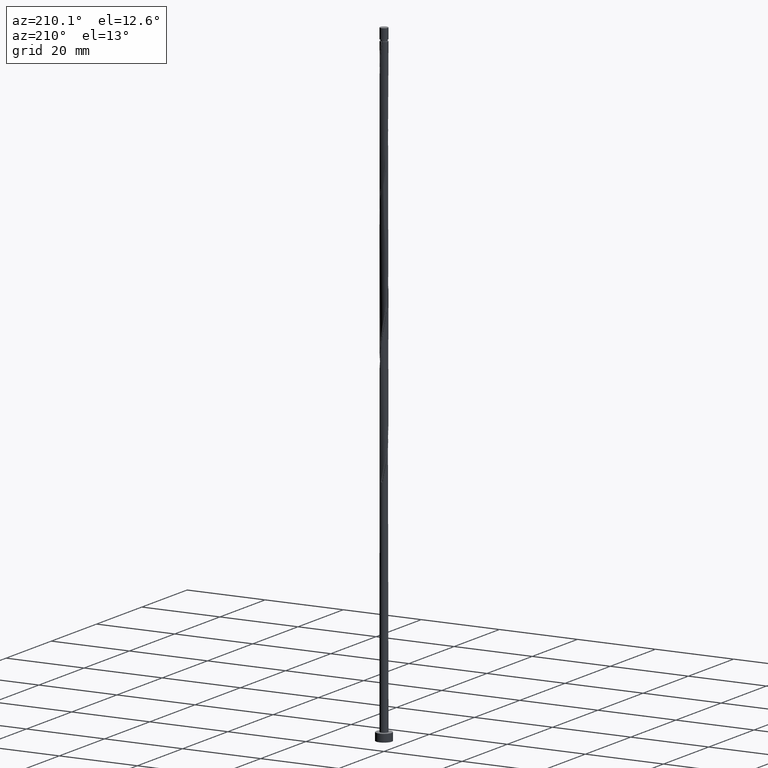
[diagram: clean part render]
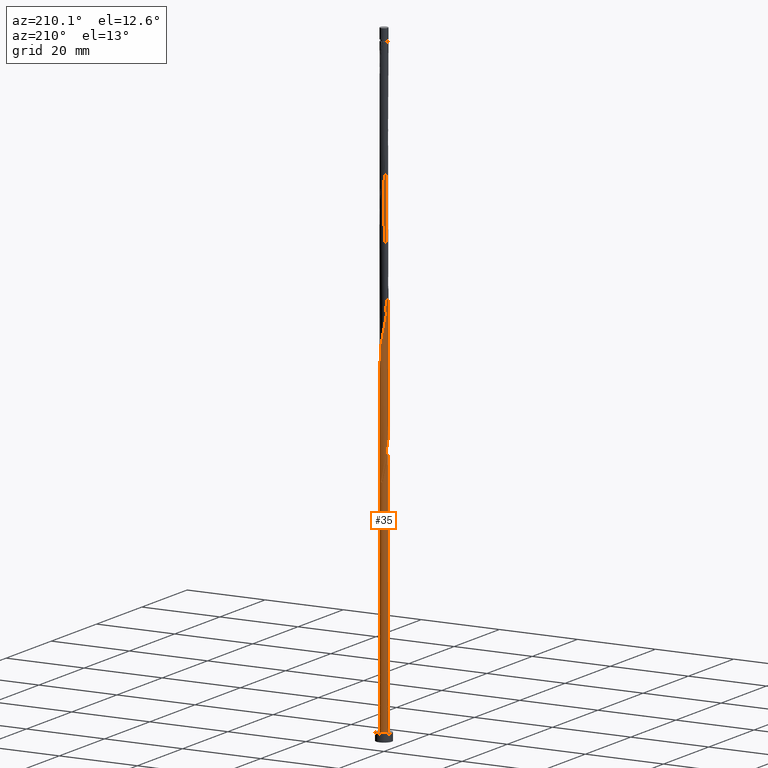
[diagram: same view with one face highlighted and labeled with its STEP entity id]
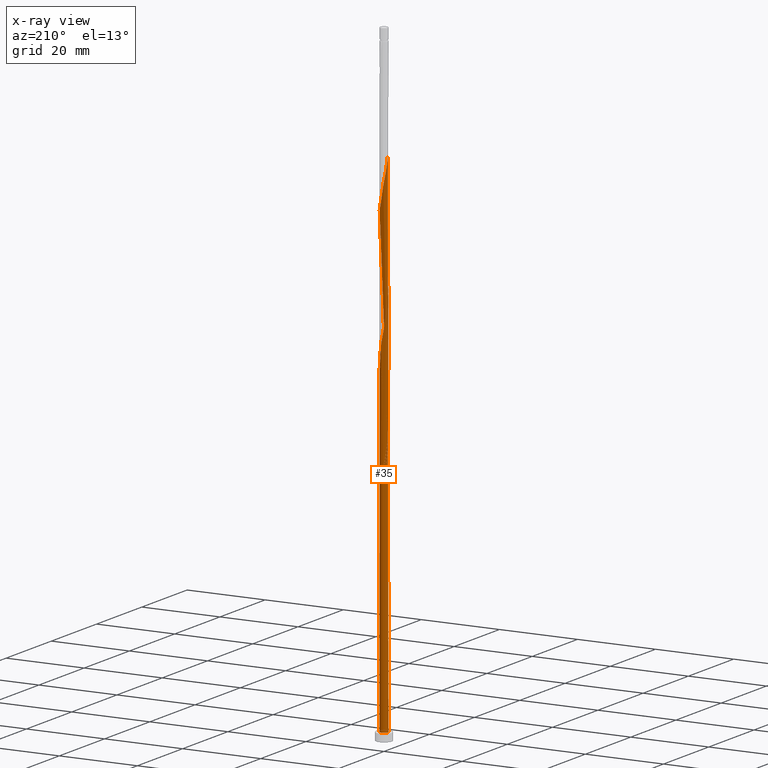
[diagram: x-ray of the same camera — body ghosted, the highlighted face saturated]
A machine part, auxiliary view. The second image highlights one B-rep face of the part: STEP entity #35.
The next image is the same camera in x-ray: the body ghosted, the highlighted face saturated — about 0% of this face is hidden behind the body in this view.
In plain terms, the highlighted cylindrical surface (bore or boss wall) has radius 1 mm, axis along (-0, -0, -1).
Its self-contained STEP definition (entity closure, byte-faithful):
#2 = CARTESIAN_POINT ( 'NONE',  ( 0.1928297432528308653, 0.9900247826383183902, 90.16126911163856050 ) ) ;
#13 = CARTESIAN_POINT ( 'NONE',  ( -0.4458594766673664722, 0.8951029700910981823, 93.63349133386081746 ) ) ;
#22 = CARTESIAN_POINT ( 'NONE',  ( 0.9800000000000006484, 0.1989974874213291944, 117.2446024449719033 ) ) ;
#29 = CARTESIAN_POINT ( 'NONE',  ( -0.8336771183575235611, 0.5522521727681104498, 129.7446024449719175 ) ) ;
#34 = DIRECTION ( 'NONE',  ( -0.000000000000000000, -0.000000000000000000, -1.000000000000000000 ) ) ;
#35 = ADVANCED_FACE ( 'NONE', ( #517 ), #1525, .T. ) ;
#37 = CARTESIAN_POINT ( 'NONE',  ( -0.7609717405145356439, 0.6620078475813413466, 129.0501580005274320 ) ) ;
#45 = CARTESIAN_POINT ( 'NONE',  ( 0.9482036394194149898, -0.3176631206038552646, 114.4668246671941318 ) ) ;
#48 = DIRECTION ( 'NONE',  ( 1.000000000000000000, 0.000000000000000000, 0.000000000000000000 ) ) ;
#71 = DIRECTION ( 'NONE',  ( -0.000000000000000000, -0.000000000000000000, -1.000000000000000000 ) ) ;
#77 = VERTEX_POINT ( 'NONE', #202 ) ;
#95 = ORIENTED_EDGE ( 'NONE', *, *, #1466, .F. ) ;
#106 = CARTESIAN_POINT ( 'NONE',  ( -0.5522521727681102277, 0.8336771183575236721, 63.07793577830522480 ) ) ;
#107 = CARTESIAN_POINT ( 'NONE',  ( 0.9063824962005111452, -0.4424964979548794419, 80.43904688941637460 ) ) ;
#117 = CARTESIAN_POINT ( 'NONE',  ( -0.7492061519980853790, -0.6623368793961456058, 103.3557135560830318 ) ) ;
#130 = CARTESIAN_POINT ( 'NONE',  ( 0.1989974874213292777, -0.9800000000000006484, 75.57793577830524612 ) ) ;
#137 = CARTESIAN_POINT ( 'NONE',  ( -0.3280169350569774323, 0.9538014837673659541, 92.93904688941633196 ) ) ;
#143 = ORIENTED_EDGE ( 'NONE', *, *, #256, .F. ) ;
#145 = CARTESIAN_POINT ( 'NONE',  ( 0.9900247826383183902, -0.1928297432528308097, 81.82793577830524612 ) ) ;
#149 = AXIS2_PLACEMENT_3D ( 'NONE', #1040, #1161, #48 ) ;
#156 = CARTESIAN_POINT ( 'NONE',  ( 0.3176631206038553201, 0.9482036394194147677, 122.8001580005274747 ) ) ;
#164 = CARTESIAN_POINT ( 'NONE',  ( -0.6623368793961456058, 0.7492061519980853790, 128.3557135560830318 ) ) ;
#168 = EDGE_CURVE ( 'NONE', #975, #1564, #942, .T. ) ;
#172 = CARTESIAN_POINT ( 'NONE',  ( 0.9981116494354764779, -0.06142585173357523187, 115.8557135560830460 ) ) ;
#181 = CARTESIAN_POINT ( 'NONE',  ( -0.06997803978568031824, 1.006198516232634788, 124.8834913338607890 ) ) ;
#185 = CARTESIAN_POINT ( 'NONE',  ( 0.000000000000000000, 0.000000000000000000, 58.91126911163856050 ) ) ;
#187 = LINE ( 'NONE', #1398, #869 ) ;
#197 = CARTESIAN_POINT ( 'NONE',  ( -1.000000000000001554, -1.495378444362007942E-16, 66.18103578976182177 ) ) ;
#198 = CARTESIAN_POINT ( 'NONE',  ( -1.000000000000001332, 0.03074195165767100446, 66.01787210173368692 ) ) ;
#202 = CARTESIAN_POINT ( 'NONE',  ( -1.000000000000000000, 0.000000000000000000, 2.000000000000000000 ) ) ;
#212 = CARTESIAN_POINT ( 'NONE',  ( -0.5637020182777556787, 0.8364044564148300775, 60.99460244497191042 ) ) ;
#226 = CARTESIAN_POINT ( 'NONE',  ( 0.1989974874213297495, 0.9800000000000006484, 58.91126911163857471 ) ) ;
#233 = VERTEX_POINT ( 'NONE', #197 ) ;
#235 = CARTESIAN_POINT ( 'NONE',  ( -0.9800000000000006484, -0.1989974874213293055, 100.5779357783052319 ) ) ;
#243 = CARTESIAN_POINT ( 'NONE',  ( -0.9538014837673660651, -0.3280169350569771547, 101.2723802227496890 ) ) ;
#250 = CARTESIAN_POINT ( 'NONE',  ( -0.9800000000000006484, -0.1989974874213293055, 67.24460244497190331 ) ) ;
#256 = EDGE_CURVE ( 'NONE', #1419, #1564, #738, .T. ) ;
#259 = CARTESIAN_POINT ( 'NONE',  ( 0.9538014837673662871, 0.3280169350569770437, 84.60571355608301758 ) ) ;
#267 = CARTESIAN_POINT ( 'NONE',  ( -0.6620078475813415686, -0.7609717405145355329, 70.71682466719414606 ) ) ;
#275 = CARTESIAN_POINT ( 'NONE',  ( 0.9063824962005111452, -0.4424964979548794419, 113.7723802227496890 ) ) ;
#282 = CARTESIAN_POINT ( 'NONE',  ( -0.06142585173357467676, -0.9981116494354764779, 107.5223802227496606 ) ) ;
#289 = CARTESIAN_POINT ( 'NONE',  ( -0.5637020182777556787, 0.8364044564148300775, 127.6612691116385747 ) ) ;
#307 = CARTESIAN_POINT ( 'NONE',  ( 0.8364044564148302996, 0.5637020182777551236, 119.3279357783052035 ) ) ;
#324 = CARTESIAN_POINT ( 'NONE',  ( -0.7492061519980856010, 0.6623368793961457168, 64.46682466719414606 ) ) ;
#356 = CARTESIAN_POINT ( 'NONE',  ( -0.3176631206038546540, 0.9482036394194148787, 61.68904688941635328 ) ) ;
#357 = CARTESIAN_POINT ( 'NONE',  ( -0.9981116494354764779, 0.06142585173357463513, 65.85571355608301758 ) ) ;
#364 = CARTESIAN_POINT ( 'NONE',  ( 0.8951029700910982934, 0.4458594766673660281, 85.30015800052747466 ) ) ;
#372 = CARTESIAN_POINT ( 'NONE',  ( -0.4424964979548793864, -0.9063824962005112562, 105.4390468894163604 ) ) ;
#378 = CARTESIAN_POINT ( 'NONE',  ( -0.06142585173357467676, -0.9981116494354764779, 74.18904688941634618 ) ) ;
#392 = ORIENTED_EDGE ( 'NONE', *, *, #852, .T. ) ;
#394 = CARTESIAN_POINT ( 'NONE',  ( -0.9981116494354764779, 0.06142585173357463513, 99.18904688941634618 ) ) ;
#398 = CARTESIAN_POINT ( 'NONE',  ( 0.000000000000000000, 0.000000000000000000, 162.0000000000000000 ) ) ;
#409 = CARTESIAN_POINT ( 'NONE',  ( -0.9482036394194149898, 0.3176631206038548205, 131.1334913338608317 ) ) ;
#417 = CARTESIAN_POINT ( 'NONE',  ( 0.5637020182777551236, -0.8364044564148302996, 110.9946024449718891 ) ) ;
#424 = CARTESIAN_POINT ( 'NONE',  ( 0.4458594766673661391, -0.8951029700910982934, 110.3001580005274889 ) ) ;
#442 = CARTESIAN_POINT ( 'NONE',  ( -0.8951029700910978493, 0.4458594766673665832, 65.85571355608300337 ) ) ;
#479 = CARTESIAN_POINT ( 'NONE',  ( 0.8336771183575232280, -0.5522521727681107828, 79.74460244497191752 ) ) ;
#487 = CARTESIAN_POINT ( 'NONE',  ( -0.6620078475813413466, 0.7609717405145359770, 63.77238022274966767 ) ) ;
#488 = CARTESIAN_POINT ( 'NONE',  ( 0.4424964979548794974, 0.9063824962005111452, 88.77238022274964635 ) ) ;
#496 = CARTESIAN_POINT ( 'NONE',  ( -0.8364044564148300775, -0.5637020182777553456, 69.32793577830524612 ) ) ;
#505 = CARTESIAN_POINT ( 'NONE',  ( 0.4458594766673661391, -0.8951029700910982934, 76.96682466719413185 ) ) ;
#517 = FACE_OUTER_BOUND ( 'NONE', #1255, .T. ) ;
#525 = CARTESIAN_POINT ( 'NONE',  ( 0.1928297432528308653, 0.9900247826383183902, 123.4946024449719033 ) ) ;
#534 = CARTESIAN_POINT ( 'NONE',  ( -1.000000000000001554, 1.831838594343459279E-16, 132.8477024564284932 ) ) ;
#540 = CARTESIAN_POINT ( 'NONE',  ( -0.3280169350569774323, 0.9538014837673659541, 126.2723802227496748 ) ) ;
#547 = CARTESIAN_POINT ( 'NONE',  ( -1.000000000000001776, 0.1005037815259243600, 67.77474273099271329 ) ) ;
#565 = CARTESIAN_POINT ( 'NONE',  ( -0.6623368793961456058, 0.7492061519980853790, 61.68904688941636749 ) ) ;
#569 = DIRECTION ( 'NONE',  ( -1.136298667188453683E-28, 1.734723475976783744E-14, -1.000000000000000000 ) ) ;
#599 = CARTESIAN_POINT ( 'NONE',  ( 0.06997803978568135908, 1.006198516232634788, 59.60571355608303179 ) ) ;
#600 = CARTESIAN_POINT ( 'NONE',  ( -0.9482036394194149898, 0.3176631206038548205, 97.80015800052744623 ) ) ;
#606 = ORIENTED_EDGE ( 'NONE', *, *, #951, .T. ) ;
#608 = CARTESIAN_POINT ( 'NONE',  ( -0.6620078475813415686, -0.7609717405145355329, 104.0501580005274604 ) ) ;
#618 = CARTESIAN_POINT ( 'NONE',  ( 0.6623368793961454948, -0.7492061519980859341, 78.35571355608301758 ) ) ;
#627 = CARTESIAN_POINT ( 'NONE',  ( -0.7492061519980853790, -0.6623368793961456058, 70.02238022274967477 ) ) ;
#634 = CARTESIAN_POINT ( 'NONE',  ( 0.9800000000000006484, 0.1989974874213291944, 83.91126911163856050 ) ) ;
#637 = AXIS2_PLACEMENT_3D ( 'NONE', #398, #34, #891 ) ;
#643 = CARTESIAN_POINT ( 'NONE',  ( -0.9900247826383183902, 0.1928297432528302546, 131.8279357783052319 ) ) ;
#660 = CARTESIAN_POINT ( 'NONE',  ( 0.5522521727681106718, 0.8336771183575233390, 121.4112691116385747 ) ) ;
#671 =( BOUNDED_CURVE ( )  B_SPLINE_CURVE ( 2, ( #1093, #959, #1200, #212, #565, #1471, #1480, #1569, #1209, #1450, #357, #198, #686 ),
 .UNSPECIFIED., .F., .T. ) 
 B_SPLINE_CURVE_WITH_KNOTS ( ( 3, 2, 2, 2, 2, 2, 3 ),
 ( 0.000000000000000000, 0.01041666666666662966, 0.02083333333333337034, 0.03125000000000000000, 0.04166666666666662966, 0.05208333333333337034, 0.05453176698144612117 ),
 .UNSPECIFIED. ) 
 CURVE ( )  GEOMETRIC_REPRESENTATION_ITEM ( )  RATIONAL_B_SPLINE_CURVE ( ( 0.9090909090909243817, 0.9013135103398429715, 0.9090909090909243817, 0.9013135103398429715, 0.9090909090909243817, 0.9013135103398429715, 0.9090909090909243817, 0.9013135103398429715, 0.9090909090909243817, 0.9013135103398429715, 0.9090909090909243817, 0.9072628343904183268, 0.9062941362546448332 ) ) 
 REPRESENTATION_ITEM ( '' )  );
#686 = CARTESIAN_POINT ( 'NONE',  ( -1.000000000000001554, -1.495378444362007942E-16, 66.18103578976182177 ) ) ;
#726 = CARTESIAN_POINT ( 'NONE',  ( 0.3280169350569771547, -0.9538014837673662871, 76.27238022274966056 ) ) ;
#732 = CARTESIAN_POINT ( 'NONE',  ( -0.8364044564148300775, -0.5637020182777553456, 102.6612691116385605 ) ) ;
#738 =( BOUNDED_CURVE ( )  B_SPLINE_CURVE ( 2, ( #1183, #547, #1062, #1568, #442, #933, #324, #487, #106, #1368, #356, #1359, #1249, #599, #226 ),
 .UNSPECIFIED., .F., .T. ) 
 B_SPLINE_CURVE_WITH_KNOTS ( ( 3, 2, 2, 2, 2, 2, 2, 3 ),
 ( 0.9295317669814461281, 0.9375000000000000000, 0.9479166666666666297, 0.9583333333333333703, 0.9687500000000000000, 0.9791666666666666297, 0.9895833333333333703, 1.000000000000000000 ),
 .UNSPECIFIED. ) 
 CURVE ( )  GEOMETRIC_REPRESENTATION_ITEM ( )  RATIONAL_B_SPLINE_CURVE ( ( 0.9062941362546346191, 0.9031415850403385903, 0.9090909090909141677, 0.9013135103398325354, 0.9090909090909141677, 0.9013135103398325354, 0.9090909090909141677, 0.9013135103398325354, 0.9090909090909141677, 0.9013135103398325354, 0.9090909090909141677, 0.9013135103398325354, 0.9090909090909141677, 0.9013135103398325354, 0.9090909090909141677 ) ) 
 REPRESENTATION_ITEM ( '' )  );
#742 = CARTESIAN_POINT ( 'NONE',  ( 0.7492061519980861561, 0.6623368793961452727, 86.68904688941637460 ) ) ;
#745 = VECTOR ( 'NONE', #71, 1000.000000000000000 ) ;
#750 = CARTESIAN_POINT ( 'NONE',  ( -0.06997803978568031824, 1.006198516232634788, 91.55015800052746044 ) ) ;
#759 = CARTESIAN_POINT ( 'NONE',  ( 0.7609717405145355329, -0.6620078475813415686, 79.05015800052747466 ) ) ;
#766 = CARTESIAN_POINT ( 'NONE',  ( 0.8951029700910982934, 0.4458594766673660281, 118.6334913338607748 ) ) ;
#772 = CARTESIAN_POINT ( 'NONE',  ( 0.4424964979548794974, 0.9063824962005111452, 122.1057135560829892 ) ) ;
#778 = CARTESIAN_POINT ( 'NONE',  ( 0.1989974874213292777, -0.9800000000000006484, 108.9112691116385889 ) ) ;
#793 = CARTESIAN_POINT ( 'NONE',  ( -0.1989974874213291389, 0.9800000000000006484, 125.5779357783052603 ) ) ;
#826 =( BOUNDED_CURVE ( )  B_SPLINE_CURVE ( 2, ( #1490, #1250, #250, #1391, #1007, #496, #627, #267, #978, #1236, #877, #868, #378, #1369, #130, #726, #505, #1376, #618, #759, #479, #107, #1266, #145, #1384, #1123, #634, #259, #364, #1627, #742, #1139, #1505, #488, #1498, #2, #996, #750, #1242, #137, #13, #1014, #1620, #1258, #1520, #1130, #600, #1511, #394, #1360, #235, #243, #1103, #732, #117, #608, #1113, #372, #900, #1165, #282, #1159, #778, #1405, #424, #417, #1542, #893, #1289, #275, #45, #1413, #172, #915, #22, #1044, #766, #307, #1549, #909, #660, #772, #156, #525, #1428, #181, #793, #540, #1281, #289, #164, #37, #29, #1030, #409, #643, #1305, #1536, #534 ),
 .UNSPECIFIED., .F., .T. ) 
 B_SPLINE_CURVE_WITH_KNOTS ( ( 3, 2, 2, 2, 2, 2, 2, 2, 2, 2, 2, 2, 2, 2, 2, 2, 2, 2, 2, 2, 2, 2, 2, 2, 2, 2, 2, 2, 2, 2, 2, 2, 2, 2, 2, 2, 2, 2, 2, 2, 2, 2, 2, 2, 2, 2, 2, 2, 2, 3 ),
 ( 0.05453176698144612117, 0.06250000000000000000, 0.07291666666666662966, 0.08333333333333337034, 0.09375000000000000000, 0.1041666666666666297, 0.1145833333333333703, 0.1250000000000000000, 0.1354166666666666297, 0.1458333333333333703, 0.1562500000000000000, 0.1666666666666666297, 0.1770833333333333703, 0.1875000000000000000, 0.1979166666666666297, 0.2083333333333333703, 0.2187500000000000000, 0.2291666666666666297, 0.2395833333333333703, 0.2500000000000000000, 0.2604166666666666297, 0.2708333333333333703, 0.2812500000000000000, 0.2916666666666666297, 0.3020833333333333703, 0.3125000000000000000, 0.3229166666666666297, 0.3333333333333333703, 0.3437500000000000000, 0.3541666666666666297, 0.3645833333333333703, 0.3750000000000000000, 0.3854166666666666297, 0.3958333333333333703, 0.4062500000000000000, 0.4166666666666666297, 0.4270833333333333703, 0.4375000000000000000, 0.4479166666666666297, 0.4583333333333333703, 0.4687500000000000000, 0.4791666666666666297, 0.4895833333333333703, 0.5000000000000000000, 0.5104166666666667407, 0.5208333333333332593, 0.5312500000000000000, 0.5416666666666667407, 0.5520833333333332593, 0.5545317669814463502 ),
 .UNSPECIFIED. ) 
 CURVE ( )  GEOMETRIC_REPRESENTATION_ITEM ( )  RATIONAL_B_SPLINE_CURVE ( ( 0.9062941362546448332, 0.9031415850403489154, 0.9090909090909243817, 0.9013135103398429715, 0.9090909090909243817, 0.9013135103398429715, 0.9090909090909243817, 0.9013135103398429715, 0.9090909090909243817, 0.9013135103398429715, 0.9090909090909243817, 0.9013135103398429715, 0.9090909090909243817, 0.9013135103398429715, 0.9090909090909243817, 0.9013135103398429715, 0.9090909090909243817, 0.9013135103398429715, 0.9090909090909243817, 0.9013135103398429715, 0.9090909090909243817, 0.9013135103398429715, 0.9090909090909243817, 0.9013135103398429715, 0.9090909090909243817, 0.9013135103398429715, 0.9090909090909243817, 0.9013135103398429715, 0.9090909090909243817, 0.9013135103398429715, 0.9090909090909243817, 0.9013135103398429715, 0.9090909090909243817, 0.9013135103398429715, 0.9090909090909243817, 0.9013135103398429715, 0.9090909090909243817, 0.9013135103398429715, 0.9090909090909243817, 0.9013135103398429715, 0.9090909090909243817, 0.9013135103398429715, 0.9090909090909243817, 0.9013135103398429715, 0.9090909090909243817, 0.9013135103398429715, 0.9090909090909243817, 0.9013135103398429715, 0.9090909090909243817, 0.9013135103398429715, 0.9090909090909243817, 0.9013135103398429715, 0.9090909090909243817, 0.9013135103398429715, 0.9090909090909243817, 0.9013135103398429715, 0.9090909090909243817, 0.9013135103398429715, 0.9090909090909243817, 0.9013135103398429715, 0.9090909090909243817, 0.9013135103398429715, 0.9090909090909243817, 0.9013135103398429715, 0.9090909090909243817, 0.9013135103398429715, 0.9090909090909243817, 0.9013135103398429715, 0.9090909090909243817, 0.9013135103398429715, 0.9090909090909243817, 0.9013135103398429715, 0.9090909090909243817, 0.9013135103398429715, 0.9090909090909243817, 0.9013135103398429715, 0.9090909090909243817, 0.9013135103398429715, 0.9090909090909243817, 0.9013135103398429715, 0.9090909090909243817, 0.9013135103398429715, 0.9090909090909243817, 0.9013135103398429715, 0.9090909090909243817, 0.9013135103398429715, 0.9090909090909243817, 0.9013135103398429715, 0.9090909090909243817, 0.9013135103398429715, 0.9090909090909243817, 0.9013135103398429715, 0.9090909090909243817, 0.9013135103398429715, 0.9090909090909243817, 0.9013135103398429715, 0.9090909090909243817, 0.9072628343904181047, 0.9062941362546447222 ) ) 
 REPRESENTATION_ITEM ( '' )  );
#827 = CARTESIAN_POINT ( 'NONE',  ( -1.000000000000001554, 1.831838594343459526E-16, 132.8477024564284932 ) ) ;
#841 = ORIENTED_EDGE ( 'NONE', *, *, #168, .T. ) ;
#852 = EDGE_CURVE ( 'NONE', #77, #857, #1381, .T. ) ;
#857 = VERTEX_POINT ( 'NONE', #952 ) ;
#868 = CARTESIAN_POINT ( 'NONE',  ( -0.1928297432528303101, -0.9900247826383183902, 73.49460244497190331 ) ) ;
#869 = VECTOR ( 'NONE', #1037, 1000.000000000000000 ) ;
#877 = CARTESIAN_POINT ( 'NONE',  ( -0.3176631206038551536, -0.9482036394194149898, 72.80015800052746044 ) ) ;
#882 = VERTEX_POINT ( 'NONE', #827 ) ;
#891 = DIRECTION ( 'NONE',  ( -1.000000000000000000, 0.000000000000000000, 0.000000000000000000 ) ) ;
#893 = CARTESIAN_POINT ( 'NONE',  ( 0.7609717405145355329, -0.6620078475813415686, 112.3834913338607890 ) ) ;
#900 = CARTESIAN_POINT ( 'NONE',  ( -0.3176631206038551536, -0.9482036394194149898, 106.1334913338608033 ) ) ;
#909 = CARTESIAN_POINT ( 'NONE',  ( 0.6620078475813419017, 0.7609717405145354219, 120.7168246671941034 ) ) ;
#915 = CARTESIAN_POINT ( 'NONE',  ( 1.006198516232634788, 0.06997803978568042926, 116.5501580005274747 ) ) ;
#919 = AXIS2_PLACEMENT_3D ( 'NONE', #185, #569, #1553 ) ;
#933 = CARTESIAN_POINT ( 'NONE',  ( -0.8364044564148300775, 0.5637020182777559008, 65.16126911163857471 ) ) ;
#942 = CIRCLE ( 'NONE', #919, 1.000000000000000000 ) ;
#951 = EDGE_CURVE ( 'NONE', #857, #77, #1192, .T. ) ;
#952 = CARTESIAN_POINT ( 'NONE',  ( 1.000000000000000000, 0.000000000000000000, 2.000000000000000000 ) ) ;
#959 = CARTESIAN_POINT ( 'NONE',  ( -0.3280169350569774323, 0.9538014837673659541, 59.60571355608302468 ) ) ;
#974 = AXIS2_PLACEMENT_3D ( 'NONE', #1239, #1088, #1335 ) ;
#975 = VERTEX_POINT ( 'NONE', #1529 ) ;
#978 = CARTESIAN_POINT ( 'NONE',  ( -0.5522521727681104498, -0.8336771183575233390, 71.41126911163857471 ) ) ;
#985 = ORIENTED_EDGE ( 'NONE', *, *, #1396, .T. ) ;
#996 = CARTESIAN_POINT ( 'NONE',  ( 0.06142585173357528738, 0.9981116494354764779, 90.85571355608300337 ) ) ;
#1007 = CARTESIAN_POINT ( 'NONE',  ( -0.8951029700910981823, -0.4458594766673663057, 68.63349133386080325 ) ) ;
#1014 = CARTESIAN_POINT ( 'NONE',  ( -0.5637020182777556787, 0.8364044564148300775, 94.32793577830521770 ) ) ;
#1030 = CARTESIAN_POINT ( 'NONE',  ( -0.9063824962005113672, 0.4424964979548792754, 130.4390468894163462 ) ) ;
#1037 = DIRECTION ( 'NONE',  ( -0.000000000000000000, -0.000000000000000000, -1.000000000000000000 ) ) ;
#1040 = CARTESIAN_POINT ( 'NONE',  ( 0.000000000000000000, 0.000000000000000000, 2.000000000000000000 ) ) ;
#1044 = CARTESIAN_POINT ( 'NONE',  ( 0.9538014837673662871, 0.3280169350569770437, 117.9390468894163746 ) ) ;
#1062 = CARTESIAN_POINT ( 'NONE',  ( -0.9800000000000006484, 0.1989974874213293887, 67.24460244497190331 ) ) ;
#1063 = LINE ( 'NONE', #1322, #745 ) ;
#1072 = CARTESIAN_POINT ( 'NONE',  ( -1.000000000000001554, 4.785211021958479058E-16, 68.30816910018198485 ) ) ;
#1088 = DIRECTION ( 'NONE',  ( 0.000000000000000000, 0.000000000000000000, 1.000000000000000000 ) ) ;
#1093 = CARTESIAN_POINT ( 'NONE',  ( -0.1989974874213292777, 0.9800000000000006484, 58.91126911163857471 ) ) ;
#1103 = CARTESIAN_POINT ( 'NONE',  ( -0.8951029700910981823, -0.4458594766673663057, 101.9668246671941461 ) ) ;
#1113 = CARTESIAN_POINT ( 'NONE',  ( -0.5522521727681104498, -0.8336771183575233390, 104.7446024449719033 ) ) ;
#1123 = CARTESIAN_POINT ( 'NONE',  ( 1.006198516232634788, 0.06997803978568042926, 83.21682466719413185 ) ) ;
#1130 = CARTESIAN_POINT ( 'NONE',  ( -0.9063824962005113672, 0.4424964979548792754, 97.10571355608300337 ) ) ;
#1139 = CARTESIAN_POINT ( 'NONE',  ( 0.6620078475813419017, 0.7609717405145354219, 87.38349133386077483 ) ) ;
#1159 = CARTESIAN_POINT ( 'NONE',  ( 0.06997803978568098437, -1.006198516232634788, 108.2168246671941176 ) ) ;
#1161 = DIRECTION ( 'NONE',  ( 0.000000000000000000, 0.000000000000000000, 1.000000000000000000 ) ) ;
#1165 = CARTESIAN_POINT ( 'NONE',  ( -0.1928297432528303101, -0.9900247826383183902, 106.8279357783052177 ) ) ;
#1173 = CARTESIAN_POINT ( 'NONE',  ( 0.1989974874213297495, 0.9800000000000006484, 58.91126911163857471 ) ) ;
#1183 = CARTESIAN_POINT ( 'NONE',  ( -1.000000000000001554, 4.785211021958479058E-16, 68.30816910018198485 ) ) ;
#1192 = CIRCLE ( 'NONE', #149, 1.000000000000000000 ) ;
#1200 = CARTESIAN_POINT ( 'NONE',  ( -0.4458594766673664722, 0.8951029700910981823, 60.30015800052746755 ) ) ;
#1209 = CARTESIAN_POINT ( 'NONE',  ( -0.9482036394194149898, 0.3176631206038548205, 64.46682466719414606 ) ) ;
#1234 = ORIENTED_EDGE ( 'NONE', *, *, #1396, .F. ) ;
#1236 = CARTESIAN_POINT ( 'NONE',  ( -0.4424964979548793864, -0.9063824962005112562, 72.10571355608300337 ) ) ;
#1239 = CARTESIAN_POINT ( 'NONE',  ( 0.000000000000000000, 0.000000000000000000, 2.000000000000000000 ) ) ;
#1242 = CARTESIAN_POINT ( 'NONE',  ( -0.1989974874213291389, 0.9800000000000006484, 92.24460244497191752 ) ) ;
#1249 = CARTESIAN_POINT ( 'NONE',  ( -0.06142585173357442002, 0.9981116494354765889, 60.30015800052744623 ) ) ;
#1250 = CARTESIAN_POINT ( 'NONE',  ( -1.000000000000001554, -0.1005037815259239575, 66.71446215895112175 ) ) ;
#1255 = EDGE_LOOP ( 'NONE', ( #1395, #95, #985, #392, #606, #1234, #1540, #841, #143 ) ) ;
#1258 = CARTESIAN_POINT ( 'NONE',  ( -0.7609717405145356439, 0.6620078475813413466, 95.71682466719413185 ) ) ;
#1266 = CARTESIAN_POINT ( 'NONE',  ( 0.9482036394194149898, -0.3176631206038552646, 81.13349133386081746 ) ) ;
#1281 = CARTESIAN_POINT ( 'NONE',  ( -0.4458594766673664722, 0.8951029700910981823, 126.9668246671941603 ) ) ;
#1289 = CARTESIAN_POINT ( 'NONE',  ( 0.8336771183575232280, -0.5522521727681107828, 113.0779357783052461 ) ) ;
#1305 = CARTESIAN_POINT ( 'NONE',  ( -0.9981116494354764779, 0.06142585173357463513, 132.5223802227496890 ) ) ;
#1322 = CARTESIAN_POINT ( 'NONE',  ( -1.000000000000000000, 0.000000000000000000, 162.0000000000000000 ) ) ;
#1335 = DIRECTION ( 'NONE',  ( 1.000000000000000000, 0.000000000000000000, 0.000000000000000000 ) ) ;
#1345 = EDGE_CURVE ( 'NONE', #975, #233, #671, .T. ) ;
#1359 = CARTESIAN_POINT ( 'NONE',  ( -0.1928297432528302269, 0.9900247826383187233, 60.99460244497191752 ) ) ;
#1360 = CARTESIAN_POINT ( 'NONE',  ( -1.006198516232634788, -0.06997803978568124805, 99.88349133386078904 ) ) ;
#1368 = CARTESIAN_POINT ( 'NONE',  ( -0.4424964979548791089, 0.9063824962005115893, 62.38349133386078904 ) ) ;
#1369 = CARTESIAN_POINT ( 'NONE',  ( 0.06997803978568098437, -1.006198516232634788, 74.88349133386080325 ) ) ;
#1376 = CARTESIAN_POINT ( 'NONE',  ( 0.5637020182777551236, -0.8364044564148302996, 77.66126911163856050 ) ) ;
#1381 = CIRCLE ( 'NONE', #974, 1.000000000000000000 ) ;
#1384 = CARTESIAN_POINT ( 'NONE',  ( 0.9981116494354764779, -0.06142585173357523187, 82.52238022274968898 ) ) ;
#1391 = CARTESIAN_POINT ( 'NONE',  ( -0.9538014837673660651, -0.3280169350569771547, 67.93904688941634618 ) ) ;
#1395 = ORIENTED_EDGE ( 'NONE', *, *, #1516, .F. ) ;
#1396 = EDGE_CURVE ( 'NONE', #233, #77, #1063, .T. ) ;
#1398 = CARTESIAN_POINT ( 'NONE',  ( -1.000000000000000000, 0.000000000000000000, 162.0000000000000000 ) ) ;
#1405 = CARTESIAN_POINT ( 'NONE',  ( 0.3280169350569771547, -0.9538014837673662871, 109.6057135560829892 ) ) ;
#1413 = CARTESIAN_POINT ( 'NONE',  ( 0.9900247826383183902, -0.1928297432528308097, 115.1612691116385605 ) ) ;
#1419 = VERTEX_POINT ( 'NONE', #1072 ) ;
#1428 = CARTESIAN_POINT ( 'NONE',  ( 0.06142585173357528738, 0.9981116494354764779, 124.1890468894163746 ) ) ;
#1450 = CARTESIAN_POINT ( 'NONE',  ( -0.9900247826383183902, 0.1928297432528302546, 65.16126911163856050 ) ) ;
#1466 = EDGE_CURVE ( 'NONE', #233, #882, #826, .T. ) ;
#1471 = CARTESIAN_POINT ( 'NONE',  ( -0.7609717405145356439, 0.6620078475813413466, 62.38349133386078904 ) ) ;
#1480 = CARTESIAN_POINT ( 'NONE',  ( -0.8336771183575235611, 0.5522521727681104498, 63.07793577830523901 ) ) ;
#1490 = CARTESIAN_POINT ( 'NONE',  ( -1.000000000000001554, -1.495378444362007942E-16, 66.18103578976182177 ) ) ;
#1498 = CARTESIAN_POINT ( 'NONE',  ( 0.3176631206038553201, 0.9482036394194147677, 89.46682466719413185 ) ) ;
#1505 = CARTESIAN_POINT ( 'NONE',  ( 0.5522521727681106718, 0.8336771183575233390, 88.07793577830523191 ) ) ;
#1511 = CARTESIAN_POINT ( 'NONE',  ( -0.9900247826383183902, 0.1928297432528302546, 98.49460244497188910 ) ) ;
#1516 = EDGE_CURVE ( 'NONE', #882, #1419, #187, .T. ) ;
#1520 = CARTESIAN_POINT ( 'NONE',  ( -0.8336771183575235611, 0.5522521727681104498, 96.41126911163858892 ) ) ;
#1525 = CYLINDRICAL_SURFACE ( 'NONE', #637, 1.000000000000000000 ) ;
#1529 = CARTESIAN_POINT ( 'NONE',  ( -0.1989974874213292222, 0.9800000000000006484, 58.91126911163857471 ) ) ;
#1536 = CARTESIAN_POINT ( 'NONE',  ( -1.000000000000001998, 0.03074195165766706664, 132.6845387684003867 ) ) ;
#1540 = ORIENTED_EDGE ( 'NONE', *, *, #1345, .F. ) ;
#1542 = CARTESIAN_POINT ( 'NONE',  ( 0.6623368793961454948, -0.7492061519980859341, 111.6890468894163604 ) ) ;
#1549 = CARTESIAN_POINT ( 'NONE',  ( 0.7492061519980861561, 0.6623368793961452727, 120.0223802227496890 ) ) ;
#1553 = DIRECTION ( 'NONE',  ( 0.000000000000000000, 1.000000000000000000, 1.387778780781445676E-14 ) ) ;
#1564 = VERTEX_POINT ( 'NONE', #1173 ) ;
#1568 = CARTESIAN_POINT ( 'NONE',  ( -0.9538014837673659541, 0.3280169350569774878, 66.55015800052746044 ) ) ;
#1569 = CARTESIAN_POINT ( 'NONE',  ( -0.9063824962005113672, 0.4424964979548792754, 63.77238022274968188 ) ) ;
#1620 = CARTESIAN_POINT ( 'NONE',  ( -0.6623368793961456058, 0.7492061519980853790, 95.02238022274970319 ) ) ;
#1627 = CARTESIAN_POINT ( 'NONE',  ( 0.8364044564148302996, 0.5637020182777551236, 85.99460244497188910 ) ) ;